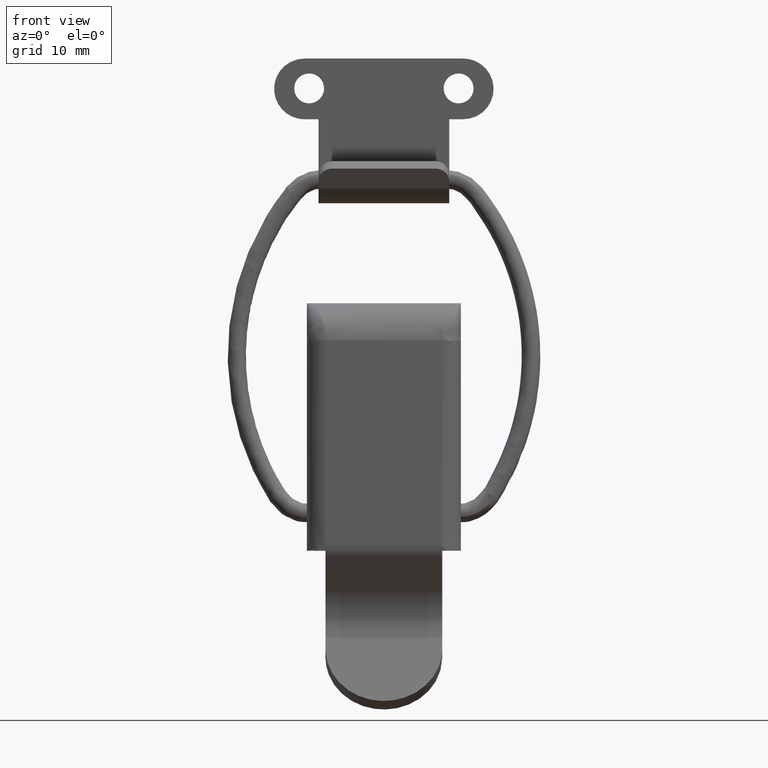
[diagram: clean part render]
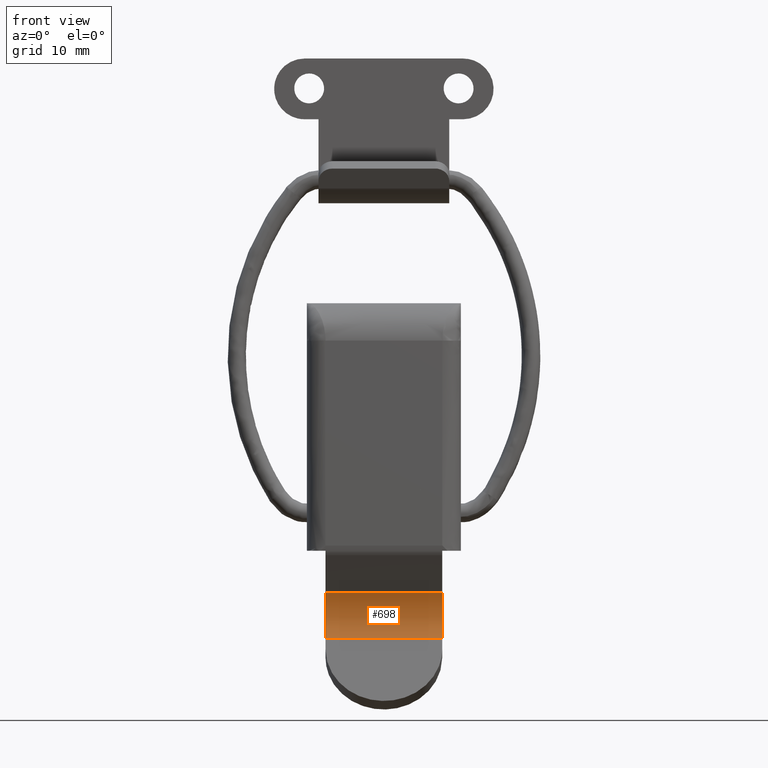
[diagram: same view with one face highlighted and labeled with its STEP entity id]
A machine part, front view. The second image highlights one B-rep face of the part: STEP entity #698.
In plain terms, the highlighted face is a freeform B-spline surface patch.
Its self-contained STEP definition (entity closure, byte-faithful):
#623=CARTESIAN_POINT('',(-6.250000000000000,-3.559328859480525,-13.384536939070260));
#624=VERTEX_POINT('',#623);
#631=CARTESIAN_POINT('',(6.250000000000000,-3.559328859480525,-13.384536939070260));
#632=VERTEX_POINT('',#631);
#638=CARTESIAN_POINT('',(6.250000000000000,-3.559328859480525,-13.384536939070260));
#639=CARTESIAN_POINT('',(-6.250000000000000,-3.559328859480525,-13.384536939070260));
#640=QUASI_UNIFORM_CURVE('',1,(#638,#639),.UNSPECIFIED.,.F.,.U.);
#641=EDGE_CURVE('',#632,#624,#640,.T.);
#646=CARTESIAN_POINT('',(6.562500000000001,-3.620629255007683,-13.500191652464711));
#647=CARTESIAN_POINT('',(-6.570312500000001,-3.620629255007683,-13.500191652464711));
#648=CARTESIAN_POINT('',(6.562500000000001,-2.150399902567865,-10.811968112680967));
#649=CARTESIAN_POINT('',(-6.570312500000001,-2.150399902567865,-10.811968112680967));
#650=CARTESIAN_POINT('',(6.562500000000001,-3.878154456546022,-8.281556219365815));
#651=CARTESIAN_POINT('',(-6.570312500000001,-3.878154456546022,-8.281556219365815));
#659=(BOUNDED_SURFACE()B_SPLINE_SURFACE(1,2,((#646,#648,#650),(#647,#649,#651)),.UNSPECIFIED.,.F.,.F.,.U.)B_SPLINE_SURFACE_WITH_KNOTS((2,2),(3,3),(0.0,13.132812500000000),(0.0,5.640583366043055),.UNSPECIFIED.)GEOMETRIC_REPRESENTATION_ITEM()RATIONAL_B_SPLINE_SURFACE(((1.0,0.852640164354092,1.0),(1.0,0.852640164354092,1.0)))REPRESENTATION_ITEM('')SURFACE());
#660=CARTESIAN_POINT('',(-6.250000000000000,-3.746425497731890,-8.484891551287801));
#661=VERTEX_POINT('',#660);
#662=CARTESIAN_POINT('',(-6.250000000000000,-3.559328859480520,-13.384536939070260));
#663=CARTESIAN_POINT('',(-6.250000000000000,-2.274628446938895,-10.882084782440327));
#664=CARTESIAN_POINT('',(-6.250000000000000,-3.746425497731887,-8.484891551287799));
#672=(BOUNDED_CURVE()B_SPLINE_CURVE(2,(#662,#663,#664),.UNSPECIFIED.,.F.,.U.)CURVE()GEOMETRIC_REPRESENTATION_ITEM()QUASI_UNIFORM_CURVE()RATIONAL_B_SPLINE_CURVE((1.0,0.871541564826010,1.0))REPRESENTATION_ITEM(''));
#673=EDGE_CURVE('',#624,#661,#672,.T.);
#674=ORIENTED_EDGE('',*,*,#673,.F.);
#675=ORIENTED_EDGE('',*,*,#641,.F.);
#676=CARTESIAN_POINT('',(6.250000000000000,-3.746425497731890,-8.484891551287801));
#677=VERTEX_POINT('',#676);
#678=CARTESIAN_POINT('',(6.250000000000000,-3.559328859480520,-13.384536939070260));
#679=CARTESIAN_POINT('',(6.250000000000000,-2.274628446938895,-10.882084782440327));
#680=CARTESIAN_POINT('',(6.250000000000000,-3.746425497731887,-8.484891551287799));
#688=(BOUNDED_CURVE()B_SPLINE_CURVE(2,(#678,#679,#680),.UNSPECIFIED.,.F.,.U.)CURVE()GEOMETRIC_REPRESENTATION_ITEM()QUASI_UNIFORM_CURVE()RATIONAL_B_SPLINE_CURVE((1.0,0.871541564826010,1.0))REPRESENTATION_ITEM(''));
#689=EDGE_CURVE('',#632,#677,#688,.T.);
#690=ORIENTED_EDGE('',*,*,#689,.T.);
#691=CARTESIAN_POINT('',(6.250000000000000,-3.746425497731890,-8.484891551287801));
#692=CARTESIAN_POINT('',(-6.250000000000000,-3.746425497731890,-8.484891551287801));
#693=QUASI_UNIFORM_CURVE('',1,(#691,#692),.UNSPECIFIED.,.F.,.U.);
#694=EDGE_CURVE('',#677,#661,#693,.T.);
#695=ORIENTED_EDGE('',*,*,#694,.T.);
#696=EDGE_LOOP('',(#674,#675,#690,#695));
#697=FACE_OUTER_BOUND('',#696,.T.);
#698=ADVANCED_FACE('',(#697),#659,.F.);